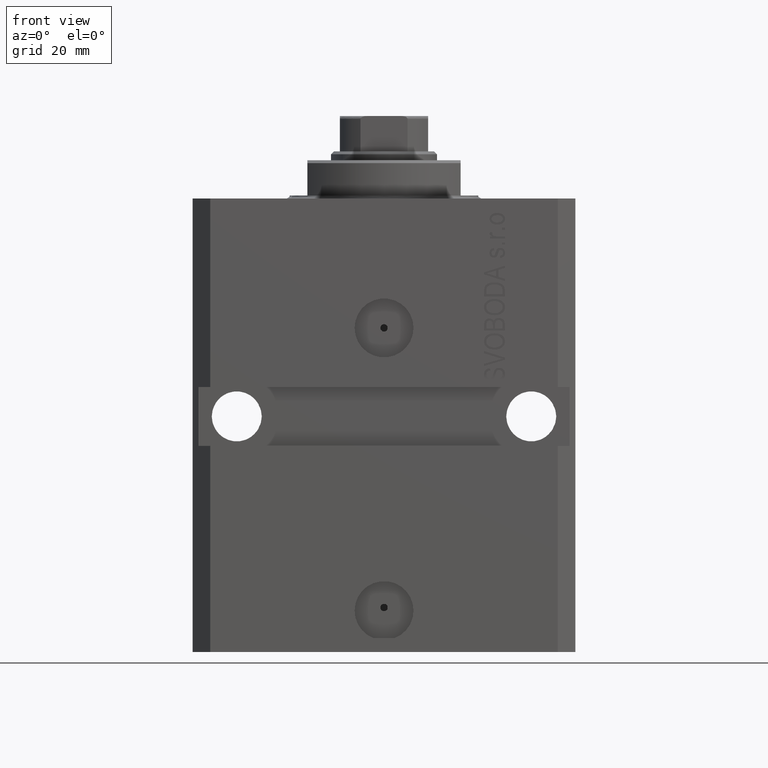
[diagram: clean part render]
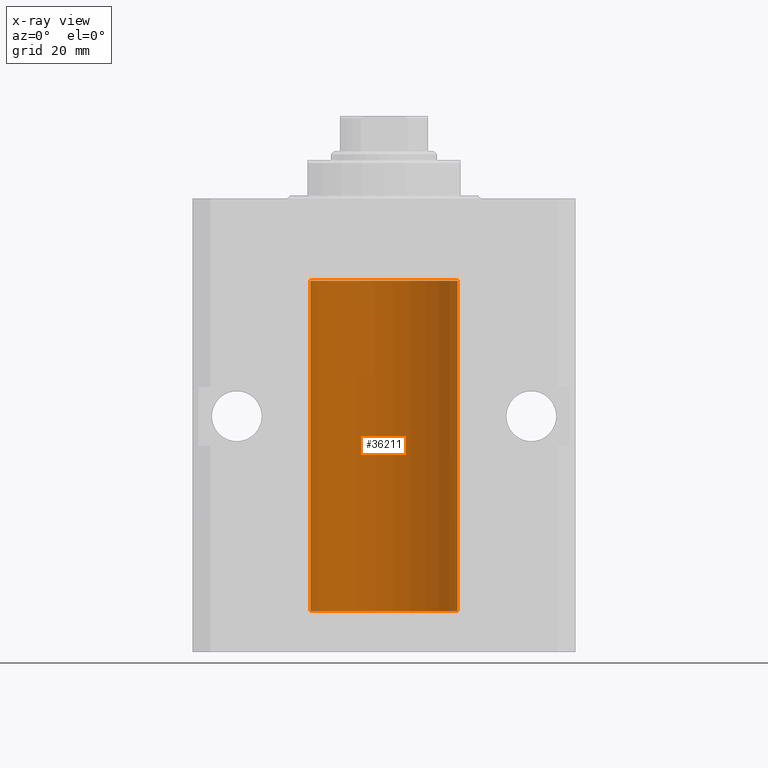
[diagram: x-ray — body ghosted, one internal face saturated and labeled with its STEP entity id]
A machine part, front view, then the same camera in x-ray: the body is ghosted and one INTERNAL B-rep face — a face not visible from any outside direction — is saturated and labeled: STEP entity #36211.
In plain terms, the highlighted cylindrical surface (partial cylindrical patch) has radius 12.5 mm, axis along (0, 0, 1).
Its self-contained STEP definition (entity closure, byte-faithful):
#717 = CARTESIAN_POINT ( 'NONE',  ( -12.50000000000000000, 1.530808498934191521E-15, -70.09999999999999432 ) ) ;
#799 = CIRCLE ( 'NONE', #7669, 12.50000000000000000 ) ;
#1234 = ORIENTED_EDGE ( 'NONE', *, *, #37316, .T. ) ;
#1236 = CARTESIAN_POINT ( 'NONE',  ( -12.49422197749724361, 0.3843754434364307082, -64.50047099568097053 ) ) ;
#1591 = VECTOR ( 'NONE', #15257, 1000.000000000000000 ) ;
#2358 = EDGE_CURVE ( 'NONE', #28531, #3227, #25121, .T. ) ;
#3227 = VERTEX_POINT ( 'NONE', #6932 ) ;
#3238 = CARTESIAN_POINT ( 'NONE',  ( -12.48810268015257563, 0.5573155909661349217, -21.67347410093867666 ) ) ;
#3738 = B_SPLINE_CURVE_WITH_KNOTS ( 'NONE', 3,
 ( #10161, #42842, #16840, #28540, #46186, #3238, #31422, #28311, #27589, #9929, #13510, #34983, #46417, #6575 ),
 .UNSPECIFIED., .F., .F.,
 ( 4, 2, 2, 2, 2, 2, 4 ),
 ( 2.030551168097110502E-20, 0.0002442924852390969078, 0.0004885849704781938157, 0.0009771699409563880650, 0.001221462426195485135, 0.001465754911434582423, 0.001954339881912776130 ),
 .UNSPECIFIED. ) ;
#3871 = DIRECTION ( 'NONE',  ( -0.000000000000000000, -0.000000000000000000, 1.000000000000000000 ) ) ;
#5050 = CARTESIAN_POINT ( 'NONE',  ( -12.50000000000000000, -1.053276923642966949E-14, -64.37500000000000000 ) ) ;
#5510 = CARTESIAN_POINT ( 'NONE',  ( -12.48520330846398174, 0.6088355886774118320, -65.16325431852561678 ) ) ;
#6575 = CARTESIAN_POINT ( 'NONE',  ( -12.50000000000017941, 3.883381646606358354E-13, -22.62500000000358824 ) ) ;
#6932 = CARTESIAN_POINT ( 'NONE',  ( -12.50000000000017941, 3.883381774819353300E-13, -65.62500000000359535 ) ) ;
#7669 = AXIS2_PLACEMENT_3D ( 'NONE', #9265, #23827, #38377 ) ;
#7673 = LINE ( 'NONE', #8614, #30934 ) ;
#8365 = DIRECTION ( 'NONE',  ( 1.000000000000000000, 0.000000000000000000, 0.000000000000000000 ) ) ;
#8614 = CARTESIAN_POINT ( 'NONE',  ( -12.50000000000000000, 1.530808498934191521E-15, -70.09999999999999432 ) ) ;
#8867 = AXIS2_PLACEMENT_3D ( 'NONE', #14171, #43277, #21569 ) ;
#9265 = CARTESIAN_POINT ( 'NONE',  ( 0.000000000000000000, 0.000000000000000000, -70.09999999999999432 ) ) ;
#9929 = CARTESIAN_POINT ( 'NONE',  ( -12.48809959379011403, 0.5462151254764975317, -22.31461370481611795 ) ) ;
#10161 = CARTESIAN_POINT ( 'NONE',  ( -12.50000000000000000, -2.089494013101375120E-17, -21.37499999999999645 ) ) ;
#10257 = VERTEX_POINT ( 'NONE', #28110 ) ;
#10277 = ORIENTED_EDGE ( 'NONE', *, *, #21054, .F. ) ;
#10514 = VERTEX_POINT ( 'NONE', #16593 ) ;
#10722 = EDGE_CURVE ( 'NONE', #38160, #13790, #42798, .T. ) ;
#12189 = DIRECTION ( 'NONE',  ( 0.000000000000000000, 0.000000000000000000, 1.000000000000000000 ) ) ;
#12387 = VERTEX_POINT ( 'NONE', #24451 ) ;
#13318 = EDGE_LOOP ( 'NONE', ( #15610, #14348, #30190, #1234, #10277, #19053, #31168, #24328 ) ) ;
#13510 = CARTESIAN_POINT ( 'NONE',  ( -12.49011732893843529, 0.5003763274120274218, -22.38348111289287701 ) ) ;
#13790 = VERTEX_POINT ( 'NONE', #38482 ) ;
#14171 = CARTESIAN_POINT ( 'NONE',  ( 0.000000000000000000, 0.000000000000000000, -70.09999999999999432 ) ) ;
#14348 = ORIENTED_EDGE ( 'NONE', *, *, #46309, .F. ) ;
#14597 = EDGE_CURVE ( 'NONE', #12387, #10257, #3738, .T. ) ;
#14629 = DIRECTION ( 'NONE',  ( -0.000000000000000000, -0.000000000000000000, 1.000000000000000000 ) ) ;
#15257 = DIRECTION ( 'NONE',  ( -0.000000000000000000, -0.000000000000000000, 1.000000000000000000 ) ) ;
#15610 = ORIENTED_EDGE ( 'NONE', *, *, #33856, .F. ) ;
#16593 = CARTESIAN_POINT ( 'NONE',  ( -12.50000000000000000, 1.530808498934191521E-15, -70.09999999999999432 ) ) ;
#16840 = CARTESIAN_POINT ( 'NONE',  ( -12.49915784441386890, 0.1636601911727947889, -21.39126818989430490 ) ) ;
#17287 = CARTESIAN_POINT ( 'NONE',  ( -12.50000000000000000, 1.530808498934191521E-15, -70.09999999999999432 ) ) ;
#17315 = AXIS2_PLACEMENT_3D ( 'NONE', #19573, #12189, #8365 ) ;
#17499 = CARTESIAN_POINT ( 'NONE',  ( 12.50000000000000000, 0.000000000000000000, -70.09999999999999432 ) ) ;
#18222 = CYLINDRICAL_SURFACE ( 'NONE', #8867, 12.50000000000000000 ) ;
#19053 = ORIENTED_EDGE ( 'NONE', *, *, #14597, .T. ) ;
#19294 = CARTESIAN_POINT ( 'NONE',  ( -12.50000000000000000, -1.053276923642966949E-14, -64.37500000000000000 ) ) ;
#19573 = CARTESIAN_POINT ( 'NONE',  ( 0.000000000000000000, 0.000000000000000000, -13.99999999999999822 ) ) ;
#20052 = CARTESIAN_POINT ( 'NONE',  ( -12.48809959379011580, 0.5462151254764966435, -65.31461370481613926 ) ) ;
#20213 = VECTOR ( 'NONE', #14629, 1000.000000000000000 ) ;
#20865 = LINE ( 'NONE', #17287, #35664 ) ;
#21054 = EDGE_CURVE ( 'NONE', #12387, #34504, #20865, .T. ) ;
#21569 = DIRECTION ( 'NONE',  ( 1.000000000000000000, 0.000000000000000000, 0.000000000000000000 ) ) ;
#22629 = CARTESIAN_POINT ( 'NONE',  ( 12.50000000000000000, 0.000000000000000000, -70.09999999999999432 ) ) ;
#22940 = CARTESIAN_POINT ( 'NONE',  ( -12.50000000000017941, 3.883381774819353300E-13, -65.62500000000359535 ) ) ;
#23125 = LINE ( 'NONE', #717, #1591 ) ;
#23419 = CARTESIAN_POINT ( 'NONE',  ( -12.49631005746706514, 0.3253680783018499389, -65.55856740465391397 ) ) ;
#23827 = DIRECTION ( 'NONE',  ( 0.000000000000000000, 0.000000000000000000, 1.000000000000000000 ) ) ;
#24328 = ORIENTED_EDGE ( 'NONE', *, *, #2358, .T. ) ;
#24451 = CARTESIAN_POINT ( 'NONE',  ( -12.50000000000000000, -2.089494013101375120E-17, -21.37499999999999645 ) ) ;
#25121 = B_SPLINE_CURVE_WITH_KNOTS ( 'NONE', 3,
 ( #5050, #38195, #37490, #33686, #1236, #34622, #41070, #45116, #5510, #20052, #26766, #23419, #45589, #22940 ),
 .UNSPECIFIED., .F., .F.,
 ( 4, 2, 2, 2, 2, 2, 4 ),
 ( 3.492495172846855184E-18, 0.0002442924852390798859, 0.0004885849704781563023, 0.0009771699409563386254, 0.001221462426195450658, 0.001465754911434562473, 0.001954339881912786538 ),
 .UNSPECIFIED. ) ;
#25696 = CARTESIAN_POINT ( 'NONE',  ( -12.50000000000000000, 1.530808498934191521E-15, -13.99999999999999822 ) ) ;
#26766 = CARTESIAN_POINT ( 'NONE',  ( -12.49011732893843885, 0.5003763274120245352, -65.38348111289289477 ) ) ;
#27589 = CARTESIAN_POINT ( 'NONE',  ( -12.48520330846397819, 0.6088355886774127201, -22.16325431852561323 ) ) ;
#28110 = CARTESIAN_POINT ( 'NONE',  ( -12.50000000000017941, 3.883381646606358354E-13, -22.62500000000358824 ) ) ;
#28287 = DIRECTION ( 'NONE',  ( -0.000000000000000000, -0.000000000000000000, 1.000000000000000000 ) ) ;
#28311 = CARTESIAN_POINT ( 'NONE',  ( -12.48436376893640443, 0.6250290278979917513, -22.08132082824473486 ) ) ;
#28531 = VERTEX_POINT ( 'NONE', #19294 ) ;
#28540 = CARTESIAN_POINT ( 'NONE',  ( -12.49625855304193678, 0.3150454781038042329, -21.45402800297484802 ) ) ;
#30190 = ORIENTED_EDGE ( 'NONE', *, *, #10722, .T. ) ;
#30934 = VECTOR ( 'NONE', #3871, 1000.000000000000000 ) ;
#31168 = ORIENTED_EDGE ( 'NONE', *, *, #46219, .F. ) ;
#31422 = CARTESIAN_POINT ( 'NONE',  ( -12.48436813453758454, 0.6249418250771192618, -21.83668996798922635 ) ) ;
#33686 = CARTESIAN_POINT ( 'NONE',  ( -12.49625855304193500, 0.3150454781038046770, -64.45402800297485157 ) ) ;
#33856 = EDGE_CURVE ( 'NONE', #10514, #3227, #7673, .T. ) ;
#34504 = VERTEX_POINT ( 'NONE', #25696 ) ;
#34622 = CARTESIAN_POINT ( 'NONE',  ( -12.48810268015257741, 0.5573155909661293705, -64.67347410093867666 ) ) ;
#34983 = CARTESIAN_POINT ( 'NONE',  ( -12.49631005746706336, 0.3253680783018528255, -22.55856740465392463 ) ) ;
#35664 = VECTOR ( 'NONE', #28287, 1000.000000000000000 ) ;
#36211 = ADVANCED_FACE ( 'NONE', ( #36588 ), #18222, .F. ) ;
#36588 = FACE_OUTER_BOUND ( 'NONE', #13318, .T. ) ;
#37316 = EDGE_CURVE ( 'NONE', #13790, #34504, #42487, .T. ) ;
#37490 = CARTESIAN_POINT ( 'NONE',  ( -12.49915784441386890, 0.1636601911727943726, -64.39126818989430490 ) ) ;
#38160 = VERTEX_POINT ( 'NONE', #22629 ) ;
#38195 = CARTESIAN_POINT ( 'NONE',  ( -12.49999999999999645, 0.08260426088728485550, -64.37499999999998579 ) ) ;
#38377 = DIRECTION ( 'NONE',  ( 1.000000000000000000, 0.000000000000000000, 0.000000000000000000 ) ) ;
#38482 = CARTESIAN_POINT ( 'NONE',  ( 12.50000000000000000, 0.000000000000000000, -13.99999999999999822 ) ) ;
#41070 = CARTESIAN_POINT ( 'NONE',  ( -12.48436813453758809, 0.6249418250771181516, -64.83668996798922990 ) ) ;
#42487 = CIRCLE ( 'NONE', #17315, 12.50000000000000000 ) ;
#42798 = LINE ( 'NONE', #17499, #20213 ) ;
#42842 = CARTESIAN_POINT ( 'NONE',  ( -12.50000000000000000, 0.08260426088729219685, -21.37500000000000000 ) ) ;
#43277 = DIRECTION ( 'NONE',  ( -0.000000000000000000, -0.000000000000000000, 1.000000000000000000 ) ) ;
#45116 = CARTESIAN_POINT ( 'NONE',  ( -12.48436376893640265, 0.6250290278979918623, -65.08132082824472775 ) ) ;
#45589 = CARTESIAN_POINT ( 'NONE',  ( -12.49999999999999822, 0.1631761135151225950, -65.62499999999985789 ) ) ;
#46186 = CARTESIAN_POINT ( 'NONE',  ( -12.49422197749724006, 0.3843754434364375916, -21.50047099568095277 ) ) ;
#46219 = EDGE_CURVE ( 'NONE', #28531, #10257, #23125, .T. ) ;
#46309 = EDGE_CURVE ( 'NONE', #38160, #10514, #799, .T. ) ;
#46417 = CARTESIAN_POINT ( 'NONE',  ( -12.49999999999999289, 0.1631761135151241215, -22.62499999999984013 ) ) ;